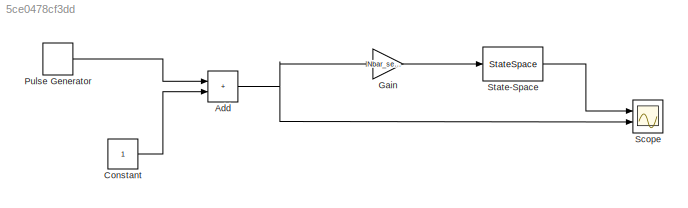
MODEL slx_5ce0478cf3dd
KIND model
CONFIG AbsTol = auto
CONFIG EnableMultiTasking = off
CONFIG FixedStep = auto
CONFIG MaxStep = auto
CONFIG MinStep = auto
CONFIG RelTol = 1e-3
CONFIG SampleTimeConstraint = Unconstrained
CONFIG SolverName = VariableStepAuto
CONFIG StartTime = 0.0
CONFIG StopTime = F
BLOCK [Sum] Add
  IconShape = rectangular
  Ports = [2, 1]
BLOCK [Constant] Constant
BLOCK [Gain] Gain
  Gain = Nbar_secun
  Multiplication = Matrix(K*u) (u vector)
BLOCK [DiscretePulseGenerator] Pulse Generator
  Period = T
  PhaseDelay = 0.75
  Ports = [0, 1]
  PulseType = Time based
  PulseWidth = 50
BLOCK [Scope] Scope
  Floating = off
  NumInputPorts = 2
  Ports = [2]
  ScopeSpecificationString = Simulink.scopes.TimeScopeBlockCfg('CurrentConfiguration', extmgr.ConfigurationSet(extmgr.Configuration('Core','General UI',true),extmgr.Configuration('Core','Source UI',true),extmgr.Configuration('Sources','WiredSimulink',true),extmgr.Configuration('Visuals','Time Domain',true,'SerializedDisplays',{struct('MinYLimReal','-0.26246','MaxYLimReal','2.36214','YLabelReal','','MinYLimMag','0.00000','MaxY...<+1368ch>
BLOCK [StateSpace] State-Space
  A = Acl_secun
  B = B3
  C = C3
  D = 0
  InitialCondition = 0
  ParameterTunability = Unconstrained
  Ports = [1, 1]
NET Add:1 -> Gain:1, Scope:2
LINE Constant:1 -> Add:2
LINE Gain:1 -> State-Space:1
LINE Pulse Generator:1 -> Add:1
LINE State-Space:1 -> Scope:1
note: NET lines group one-source signal fan-out (src -> all destinations, sorted); 1:1 wires keep LINE
